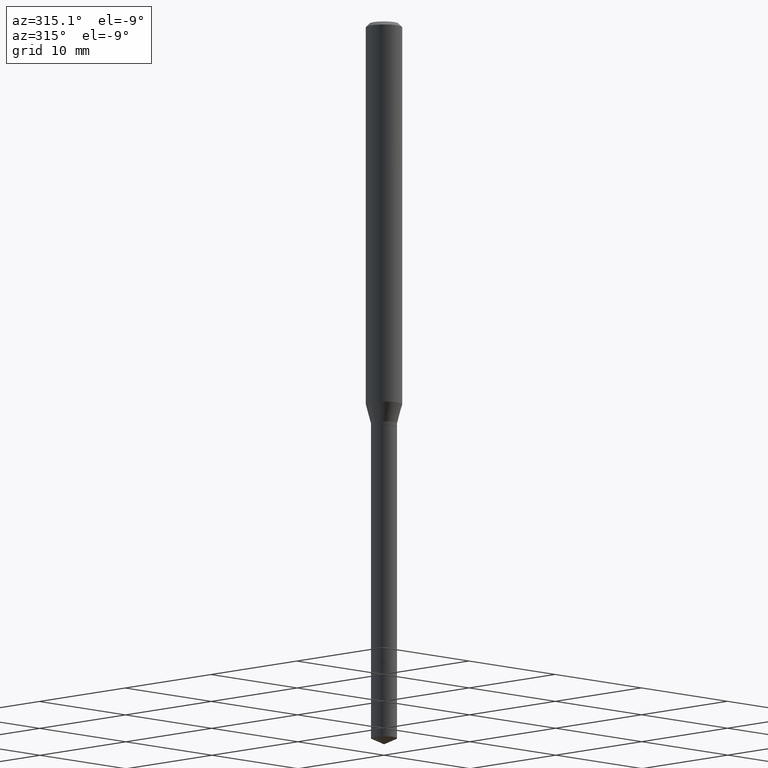
[diagram: clean part render]
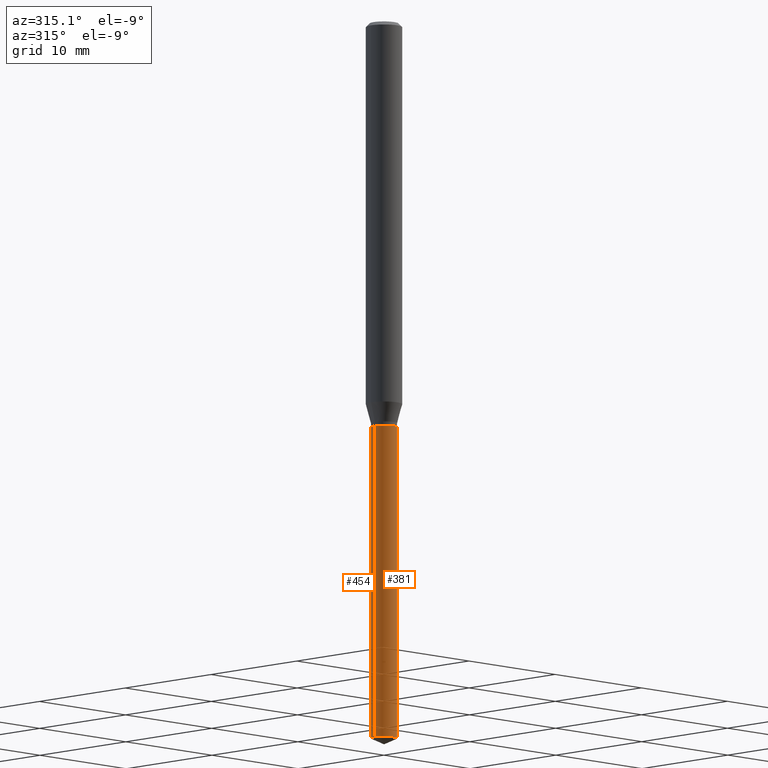
[diagram: same view with one multi-face feature highlighted, each face labeled with its STEP entity id]
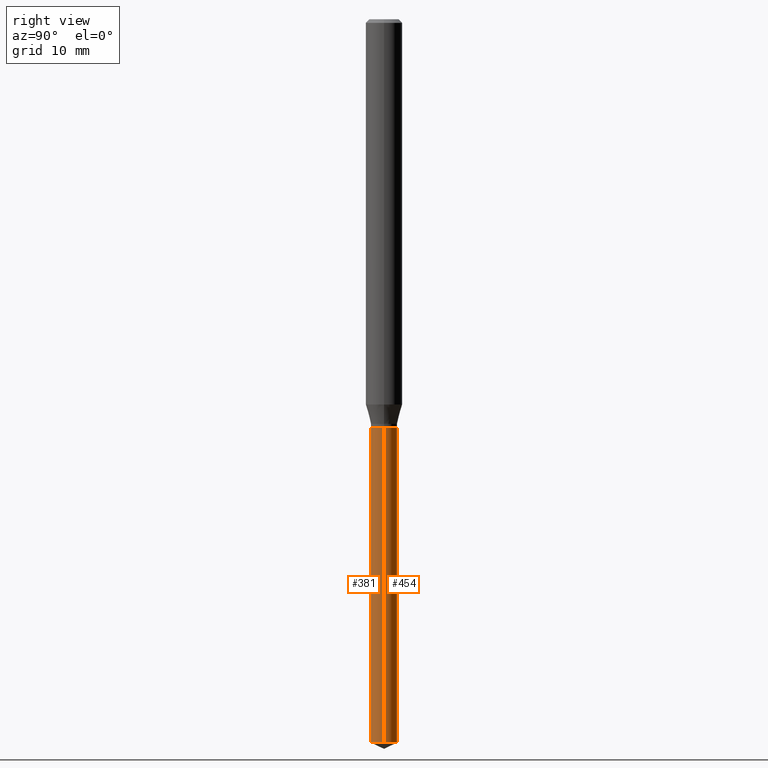
[diagram: same view with one multi-face feature highlighted, each face labeled with its STEP entity id]
A machine part, auxiliary view. The highlighted faces form ONE feature: a constant-radius fillet chain: 2 tangent blend faces with common blend radius 1.0744 mm. The faces share edges in the B-rep.
A second angle (right view) of the same feature is appended — it is thin or edge-on in the first view.
Their STEP definitions:
[1] entity #454 (Cylinder):
#20 = EDGE_CURVE ( 'NONE', #260, #143, #85, .T. ) ;
#21 = LINE ( 'NONE', #369, #311 ) ;
#52 = AXIS2_PLACEMENT_3D ( 'NONE', #265, #335, #339 ) ;
#54 = DIRECTION ( 'NONE',  ( 1.000000000000000000, -6.982962677686266711E-15, 0.000000000000000000 ) ) ;
#85 = CIRCLE ( 'NONE', #52, 0.04229999999999999732 ) ;
#91 = CARTESIAN_POINT ( 'NONE',  ( 0.04229999999999999039, -8.474087720097896085E-15, -2.342475186060043235 ) ) ;
#92 = DIRECTION ( 'NONE',  ( -2.445468806185136877E-29, 3.491481338843145188E-15, 1.000000000000000000 ) ) ;
#101 = VERTEX_POINT ( 'NONE', #91 ) ;
#132 = CARTESIAN_POINT ( 'NONE',  ( 3.234866136821698001E-29, -4.618531515021712068E-15, -1.322799999999999976 ) ) ;
#136 = CARTESIAN_POINT ( 'NONE',  ( -0.04229999999999999732, -4.317971937795189659E-15, -1.322799999999999976 ) ) ;
#143 = VERTEX_POINT ( 'NONE', #198 ) ;
#162 = EDGE_LOOP ( 'NONE', ( #464, #450, #291, #473 ) ) ;
#196 = AXIS2_PLACEMENT_3D ( 'NONE', #243, #390, #465 ) ;
#198 = CARTESIAN_POINT ( 'NONE',  ( -0.04229999999999999732, -6.098060379700217338E-15, -1.322799999999999976 ) ) ;
#202 = CIRCLE ( 'NONE', #196, 0.04229999999999999732 ) ;
#212 = VERTEX_POINT ( 'NONE', #246 ) ;
#243 = CARTESIAN_POINT ( 'NONE',  ( 5.728449996772559729E-29, -8.178708398831766638E-15, -2.342475186060043235 ) ) ;
#246 = CARTESIAN_POINT ( 'NONE',  ( -0.04229999999999999039, -7.878148821605244229E-15, -2.342475186060043235 ) ) ;
#260 = VERTEX_POINT ( 'NONE', #397 ) ;
#265 = CARTESIAN_POINT ( 'NONE',  ( 3.234866136821698001E-29, -4.618531515021712068E-15, -1.322799999999999976 ) ) ;
#291 = ORIENTED_EDGE ( 'NONE', *, *, #20, .F. ) ;
#295 = FACE_OUTER_BOUND ( 'NONE', #162, .T. ) ;
#311 = VECTOR ( 'NONE', #406, 39.37007874015748143 ) ;
#327 = EDGE_CURVE ( 'NONE', #101, #212, #202, .T. ) ;
#335 = DIRECTION ( 'NONE',  ( -2.445468806185136597E-29, 3.491481338843145583E-15, 1.000000000000000000 ) ) ;
#339 = DIRECTION ( 'NONE',  ( 1.000000000000000000, -6.982962677686266711E-15, 0.000000000000000000 ) ) ;
#369 = CARTESIAN_POINT ( 'NONE',  ( 0.04229999999999999732, -4.913910836287841516E-15, -1.322799999999999976 ) ) ;
#390 = DIRECTION ( 'NONE',  ( -2.445468806185136597E-29, 3.491481338843145583E-15, 1.000000000000000000 ) ) ;
#397 = CARTESIAN_POINT ( 'NONE',  ( 0.04229999999999999732, -4.913910836287841516E-15, -1.322799999999999976 ) ) ;
#406 = DIRECTION ( 'NONE',  ( -2.445468806185136877E-29, 3.491481338843145188E-15, 1.000000000000000000 ) ) ;
#428 = VECTOR ( 'NONE', #92, 39.37007874015748143 ) ;
#430 = DIRECTION ( 'NONE',  ( -2.445468806185136597E-29, 3.491481338843145583E-15, 1.000000000000000000 ) ) ;
#442 = EDGE_CURVE ( 'NONE', #212, #143, #443, .T. ) ;
#443 = LINE ( 'NONE', #136, #428 ) ;
#450 = ORIENTED_EDGE ( 'NONE', *, *, #442, .T. ) ;
#454 = ADVANCED_FACE ( 'NONE', ( #295 ), #479, .T. ) ;
#464 = ORIENTED_EDGE ( 'NONE', *, *, #327, .T. ) ;
#465 = DIRECTION ( 'NONE',  ( 1.000000000000000000, -6.982962677686266711E-15, 0.000000000000000000 ) ) ;
#473 = ORIENTED_EDGE ( 'NONE', *, *, #476, .F. ) ;
#476 = EDGE_CURVE ( 'NONE', #101, #260, #21, .T. ) ;
#479 = CYLINDRICAL_SURFACE ( 'NONE', #487, 0.04229999999999999732 ) ;
#487 = AXIS2_PLACEMENT_3D ( 'NONE', #132, #430, #54 ) ;
[2] entity #381 (Cylinder):
#9 = DIRECTION ( 'NONE',  ( -2.445468806185136597E-29, 3.491481338843145583E-15, 1.000000000000000000 ) ) ;
#15 = FACE_OUTER_BOUND ( 'NONE', #258, .T. ) ;
#21 = LINE ( 'NONE', #369, #311 ) ;
#22 = ORIENTED_EDGE ( 'NONE', *, *, #234, .T. ) ;
#43 = ORIENTED_EDGE ( 'NONE', *, *, #442, .F. ) ;
#77 = DIRECTION ( 'NONE',  ( 1.000000000000000000, -6.982962677686266711E-15, 0.000000000000000000 ) ) ;
#88 = AXIS2_PLACEMENT_3D ( 'NONE', #392, #429, #207 ) ;
#91 = CARTESIAN_POINT ( 'NONE',  ( 0.04229999999999999039, -8.474087720097896085E-15, -2.342475186060043235 ) ) ;
#92 = DIRECTION ( 'NONE',  ( -2.445468806185136877E-29, 3.491481338843145188E-15, 1.000000000000000000 ) ) ;
#101 = VERTEX_POINT ( 'NONE', #91 ) ;
#120 = AXIS2_PLACEMENT_3D ( 'NONE', #353, #9, #173 ) ;
#136 = CARTESIAN_POINT ( 'NONE',  ( -0.04229999999999999732, -4.317971937795189659E-15, -1.322799999999999976 ) ) ;
#143 = VERTEX_POINT ( 'NONE', #198 ) ;
#167 = CYLINDRICAL_SURFACE ( 'NONE', #120, 0.04229999999999999732 ) ;
#169 = CIRCLE ( 'NONE', #88, 0.04229999999999999732 ) ;
#173 = DIRECTION ( 'NONE',  ( 1.000000000000000000, -6.982962677686266711E-15, 0.000000000000000000 ) ) ;
#198 = CARTESIAN_POINT ( 'NONE',  ( -0.04229999999999999732, -6.098060379700217338E-15, -1.322799999999999976 ) ) ;
#200 = DIRECTION ( 'NONE',  ( -2.445468806185136597E-29, 3.491481338843145583E-15, 1.000000000000000000 ) ) ;
#207 = DIRECTION ( 'NONE',  ( 1.000000000000000000, -6.982962677686266711E-15, 0.000000000000000000 ) ) ;
#212 = VERTEX_POINT ( 'NONE', #246 ) ;
#234 = EDGE_CURVE ( 'NONE', #212, #101, #352, .T. ) ;
#246 = CARTESIAN_POINT ( 'NONE',  ( -0.04229999999999999039, -7.878148821605244229E-15, -2.342475186060043235 ) ) ;
#257 = AXIS2_PLACEMENT_3D ( 'NONE', #278, #200, #77 ) ;
#258 = EDGE_LOOP ( 'NONE', ( #43, #22, #351, #371 ) ) ;
#260 = VERTEX_POINT ( 'NONE', #397 ) ;
#278 = CARTESIAN_POINT ( 'NONE',  ( 5.728449996772559729E-29, -8.178708398831766638E-15, -2.342475186060043235 ) ) ;
#311 = VECTOR ( 'NONE', #406, 39.37007874015748143 ) ;
#313 = EDGE_CURVE ( 'NONE', #143, #260, #169, .T. ) ;
#351 = ORIENTED_EDGE ( 'NONE', *, *, #476, .T. ) ;
#352 = CIRCLE ( 'NONE', #257, 0.04229999999999999732 ) ;
#353 = CARTESIAN_POINT ( 'NONE',  ( 3.234866136821698001E-29, -4.618531515021712068E-15, -1.322799999999999976 ) ) ;
#369 = CARTESIAN_POINT ( 'NONE',  ( 0.04229999999999999732, -4.913910836287841516E-15, -1.322799999999999976 ) ) ;
#371 = ORIENTED_EDGE ( 'NONE', *, *, #313, .F. ) ;
#381 = ADVANCED_FACE ( 'NONE', ( #15 ), #167, .T. ) ;
#392 = CARTESIAN_POINT ( 'NONE',  ( 3.234866136821698001E-29, -4.618531515021712068E-15, -1.322799999999999976 ) ) ;
#397 = CARTESIAN_POINT ( 'NONE',  ( 0.04229999999999999732, -4.913910836287841516E-15, -1.322799999999999976 ) ) ;
#406 = DIRECTION ( 'NONE',  ( -2.445468806185136877E-29, 3.491481338843145188E-15, 1.000000000000000000 ) ) ;
#428 = VECTOR ( 'NONE', #92, 39.37007874015748143 ) ;
#429 = DIRECTION ( 'NONE',  ( -2.445468806185136597E-29, 3.491481338843145583E-15, 1.000000000000000000 ) ) ;
#442 = EDGE_CURVE ( 'NONE', #212, #143, #443, .T. ) ;
#443 = LINE ( 'NONE', #136, #428 ) ;
#476 = EDGE_CURVE ( 'NONE', #101, #260, #21, .T. ) ;